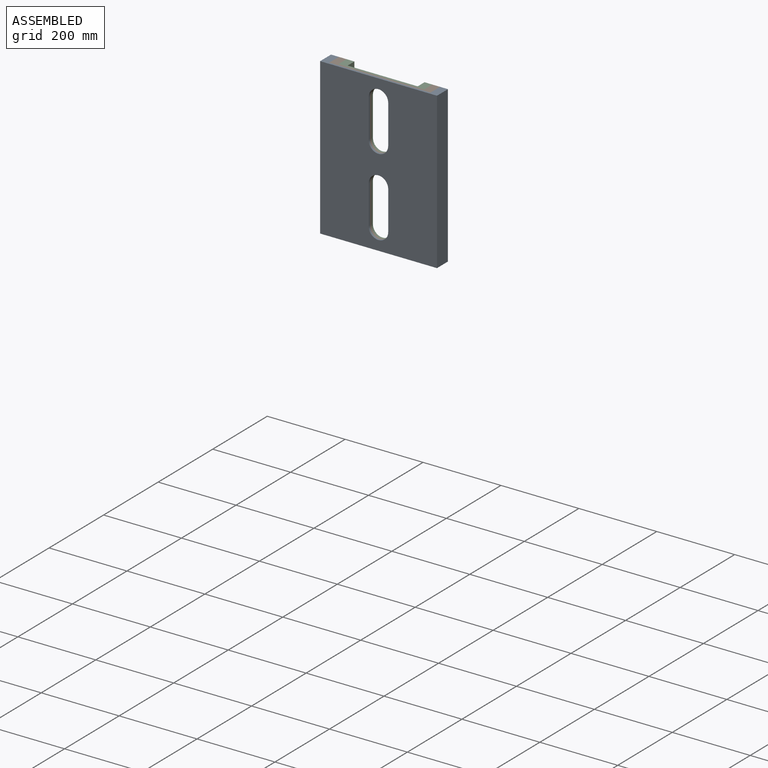
[diagram: assembled view]
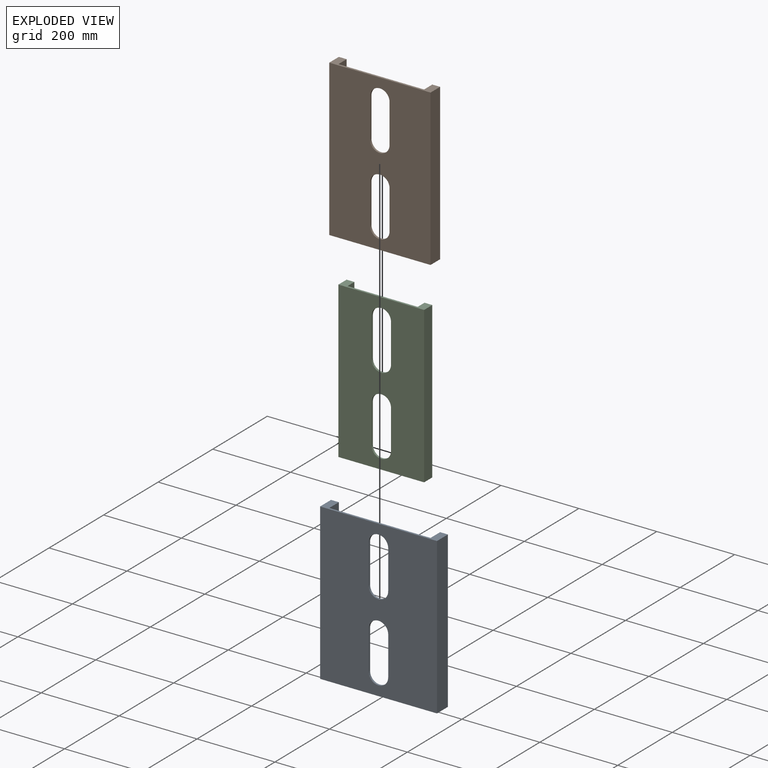
[diagram: exploded view]
GUIDED TOUR — MATED ASSEMBLY (Onshape document 260df022193e4503c66df0c3, AutoMate assembly 260df022193e4503c66df0c3_1e79afa482a3087c5a949fdb_3b2cb31a58f649726c2a078a_default)

This assembly has 3 components, labeled P0..P2 below (a component is one placed occurrence of a part; the same part can appear more than once), held together by 4 mates. A mate is a constraint between two components; its type names the relative motion it leaves free:
  PARALLEL — keeps the two listed directions parallel,
  SLIDER — leaves translation along the listed axis free.
Axis/direction vectors are unit vectors and 'through' points are millimeter coordinates, both in the assembly's world frame.

MATES
  1. PARALLEL "Parallel 1": P2 <-> P1, direction (0.000, 0.000, -1.000) through (0.00, -0.36, 0.00) mm
  2. PARALLEL "Parallel 3": P0 <-> P1, direction (0.000, 0.000, -1.000) through (0.00, -7.84, 0.00) mm
  3. SLIDER "Slider 1": P1 <-> P0, axis (0.000, 0.000, -1.000) through (-130.00, -15.00, 200.00) mm
  4. SLIDER "Slider 2": P2 <-> P1, axis (0.000, 0.000, -1.000) through (110.00, -10.00, 200.00) mm

ASSEMBLY ORDER
  1. P1 — the base component [order verified]
  2. P2 [order verified]
  3. P0 [order verified]
Order-tag legend:
  [order verified] — this step's position reverses a verified removal order: the component was checked to insert without passing through the ones already placed.

Of the 3 components, 3 carry the full construction recipe — the FeatureScript program that regenerates the part's solid from scratch; the rest are supplied as boundary geometry only.
Each toured component is shown spotlighted twice — in the assembled view, then in the exploded view, where a leader line traces a displaced component back to its assembled socket (saturated green if recipe-attached, orange if geometry-only; every other component desaturated gray) — followed by its recipe or geometry summary and the mates that hold it.
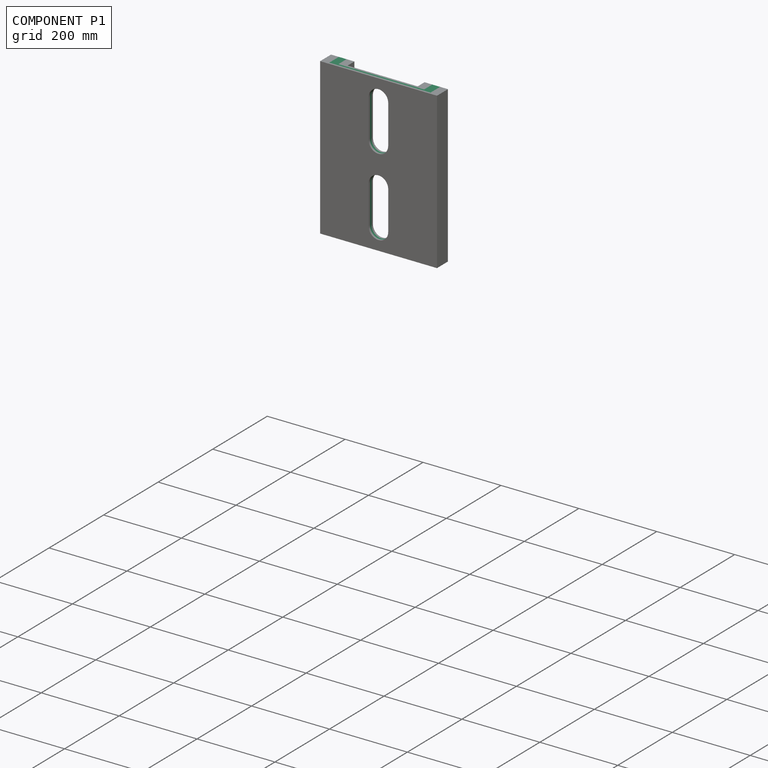
[diagram: component P1 — assembled]
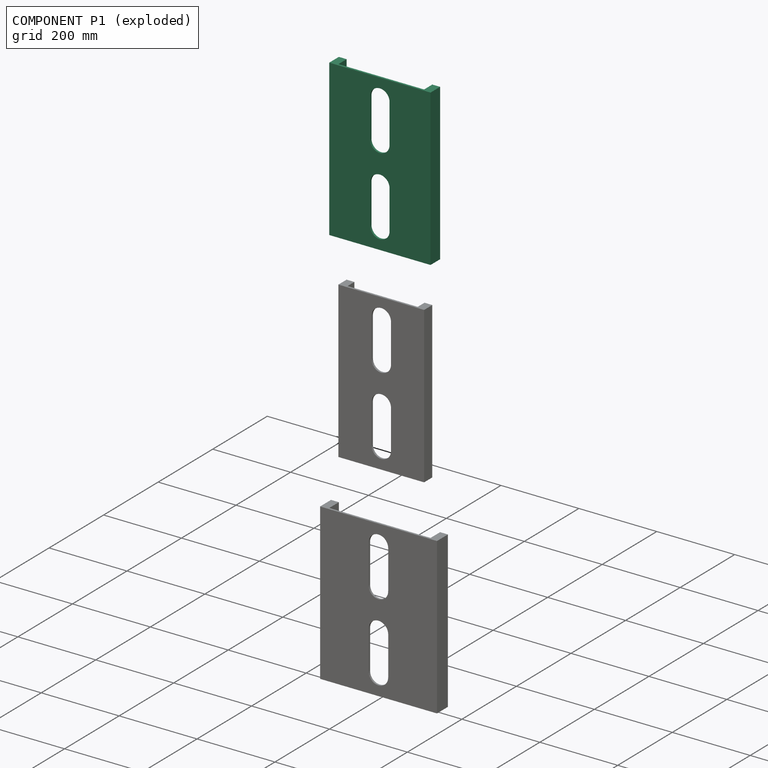
[diagram: component P1 — exploded]
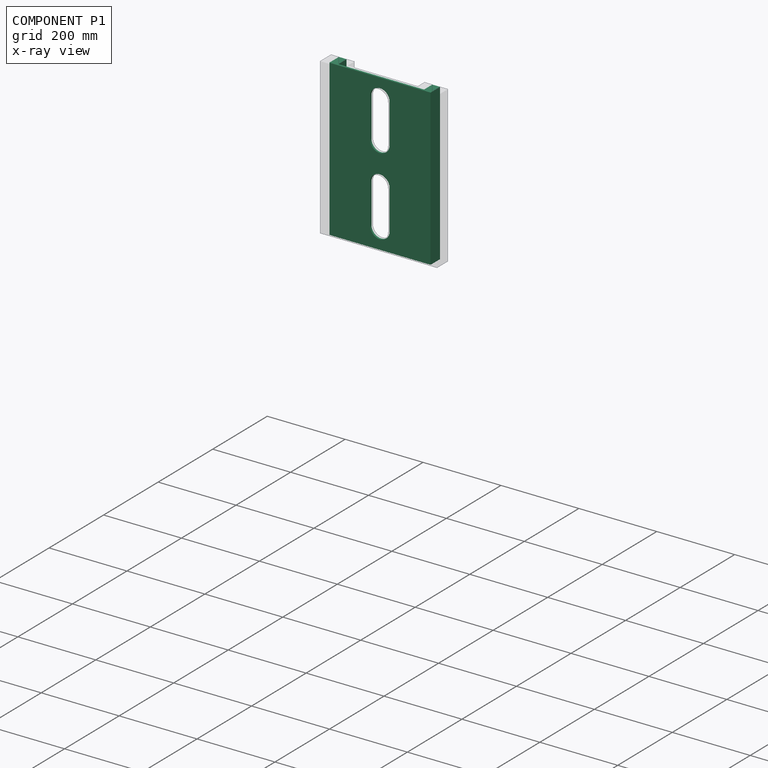
[diagram: component P1 — x-ray view]
COMPONENT P1 — recipe-attached (CADFS 00913795, mesh-verified: the recipe's output STEP matches this component's geometry to below the mesh-comparison resolution (tessellation chordal tolerance ~0.718 mm)).
Held by: PARALLEL mate "Parallel 1" to P2; PARALLEL mate "Parallel 3" to P0; SLIDER mate "Slider 1" to P0; SLIDER mate "Slider 2" to P2.
Construction recipe (FeatureScript — the CAD program that rebuilds this solid; sketch coordinates are in the units given by the * unit suffixes, e.g. mm):

FeatureScript 1511;
import(path : "onshape/std/geometry.fs", version : "1511.0");
import(path : "onshape/std/common.fs", version : "1511.0");
const mm = millimeter;
const VERTEX = EntityType.VERTEX;
const EDGE = EntityType.EDGE;
const FACE = EntityType.FACE;
const BODY = EntityType.BODY;
function v(x, y){return vector(x, y);}
function OD(order){return orderDisambiguation(order);}
function OSD(set){return originalSetDisambiguation(set);}
function TD(topology){return topologyDisambiguation(topology);}
function TDD(query){return trueDependencyDisambiguation(query);}
function sQuery(a, b, c) {return sketchEntityQuery(a, b, c);}

annotation { "Feature Type Name" : "Feature", "Feature Type Description" : "" }
export const myFeature = defineFeature(function(context is Context, id is Id, definition is map)
    precondition{}
    {
        {
            var Q0;
            Q0=qCreatedBy(makeId("Top.planeOp"),FACE);
            var sketch = newSketch(context, id + "F0", { "sketchPlane" : qUnion([Q0])});
            skLineSegment(sketch, "E0.bottom", {"start": v(-130, -17.5) * mm, "end": v(130, -17.5) * mm});
            skLineSegment(sketch, "E0.top", {"start": v(-130, 17.5) * mm, "end": v(-110, 17.5) * mm});
            skLineSegment(sketch, "E0.left", {"start": v(-130, -17.5) * mm, "end": v(-130, 17.5) * mm});
            skLineSegment(sketch, "E0.right", {"start": v(130, -17.5) * mm, "end": v(130, 17.5) * mm});
            skPoint(sketch, "E0.middle", {"position": v(0, 0) * mm});
            skLineSegment(sketch, "E1.top", {"start": v(-110, -12.5) * mm, "end": v(110, -12.5) * mm});
            skLineSegment(sketch, "E1.left", {"start": v(-110, 17.5) * mm, "end": v(-110, -12.5) * mm});
            skLineSegment(sketch, "E1.right", {"start": v(110, 17.5) * mm, "end": v(110, -12.5) * mm});
            skLineSegment(sketch, "E2.trimOffspring", {"start": v(110, 17.5) * mm, "end": v(130, 17.5) * mm});
            skSolve(sketch);
        }
        {
            var Q0;
            Q0=makeQuery(id+"F0.imprint","IMPRINT",FACE,{"disambiguationData":[TD([[makeQuery(id+"F0.imprint","IMPRINT",EDGE,{"derivedFrom":sQuery(id+"F0.wireOp",EDGE,"E0.bottom")}),1.0]])]});
            extrude(context, id + "F1", {"entities" : qUnion([Q0]), "depth" : 400 * mm, "offsetDistance" : 25 * mm});
        }
        {
            var Q0;
            Q0=makeQuery(id+"F1.opExtrude","SWEPT_FACE",FACE,{"disambiguationData":[OSD([sQuery(id+"F0.wireOp",EDGE,"E0.bottom")])]});
            var sketch = newSketch(context, id + "F2", { "sketchPlane" : qUnion([Q0])});
            skLineSegment(sketch, "E3.left", {"start": v(-25.22, 250) * mm, "end": v(-25.22, 350) * mm});
            skLineSegment(sketch, "E3.right", {"start": v(24.78, 250) * mm, "end": v(24.78, 350) * mm});
            skPoint(sketch, "E3.middle", {"position": v(-0.22, 300) * mm});
            skArc(sketch, "E4", {"start": v(-25.22, 350) * mm, "mid": v(-0.22, 375) * mm, "end": v(24.78, 350) * mm});
            skArc(sketch, "E5", {"start": v(24.78, 250) * mm, "mid": v(-0.22, 225) * mm, "end": v(-25.22, 250) * mm});
            skLineSegment(sketch, "E6", {"start": v(-151.6, 200) * mm, "end": v(155.6, 200) * mm, "construction": true});
            skLineSegment(sketch, "E7.MirrorCS", {"start": v(24.78, 150) * mm, "end": v(24.78, 50) * mm});
            skLineSegment(sketch, "E8.MirrorCS", {"start": v(-25.22, 150) * mm, "end": v(-25.22, 50) * mm});
            skArc(sketch, "E9.MirrorCS", {"start": v(-25.22, 50) * mm, "mid": v(-0.22, 25) * mm, "end": v(24.78, 50) * mm});
            skArc(sketch, "E10.MirrorCS", {"start": v(24.78, 150) * mm, "mid": v(-0.22, 175) * mm, "end": v(-25.22, 150) * mm});
            skSolve(sketch);
        }
        {
            var Q0;
            Q0 = qSketchRegion(id + "F2", true);
            extrude(context, id + "F3", {"entities" : qUnion([Q0]), "operationType" : NewBodyOperationType.REMOVE, "oppositeDirection" : true, "depth" : 25 * mm, "offsetDistance" : 25 * mm});
        }
    });
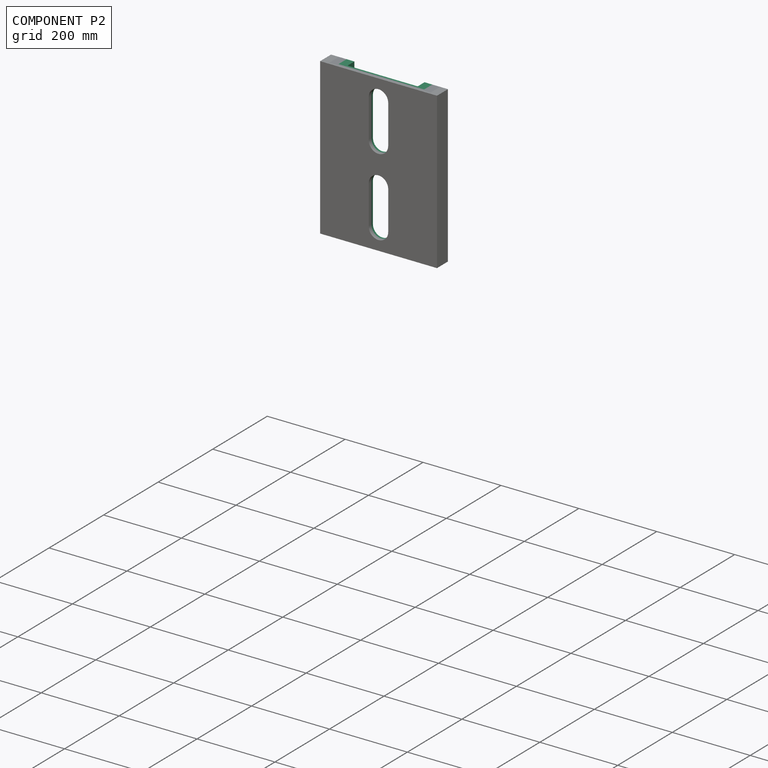
[diagram: component P2 — assembled]
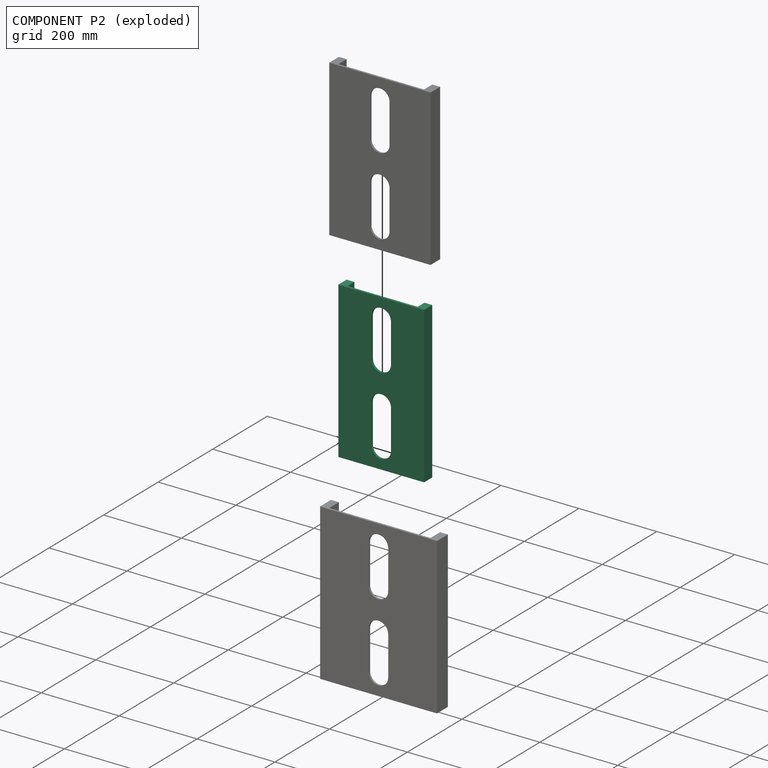
[diagram: component P2 — exploded]
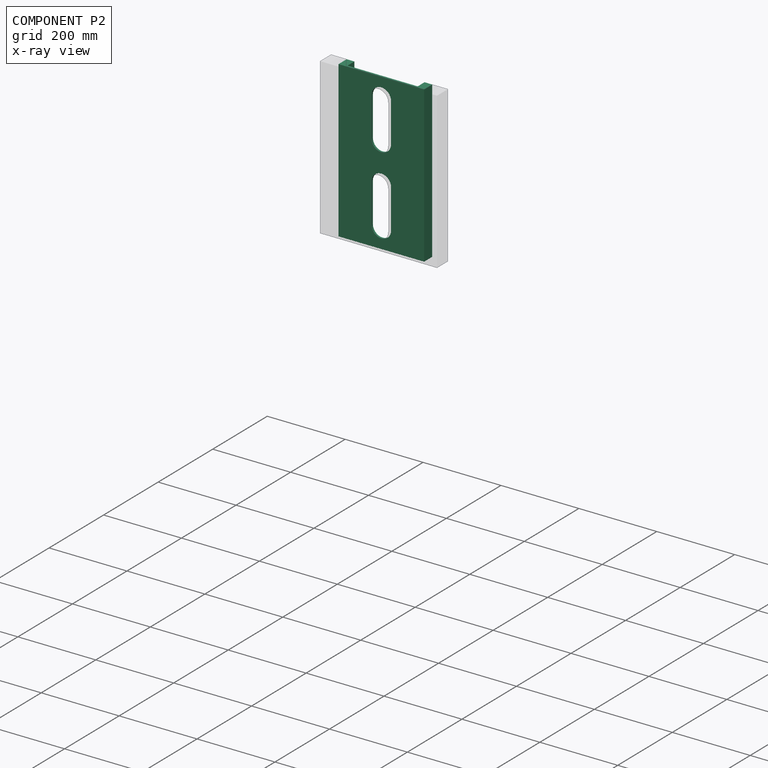
[diagram: component P2 — x-ray view]
COMPONENT P2 — recipe-attached (CADFS 00913806, mesh-verified: the recipe's output STEP matches this component's geometry to below the mesh-comparison resolution (tessellation chordal tolerance ~0.686 mm)).
Held by: PARALLEL mate "Parallel 1" to P1; SLIDER mate "Slider 2" to P1.
Construction recipe (FeatureScript — the CAD program that rebuilds this solid; sketch coordinates are in the units given by the * unit suffixes, e.g. mm):

FeatureScript 1511;
import(path : "onshape/std/geometry.fs", version : "1511.0");
import(path : "onshape/std/common.fs", version : "1511.0");
const mm = millimeter;
const VERTEX = EntityType.VERTEX;
const EDGE = EntityType.EDGE;
const FACE = EntityType.FACE;
const BODY = EntityType.BODY;
function v(x, y){return vector(x, y);}
function OD(order){return orderDisambiguation(order);}
function OSD(set){return originalSetDisambiguation(set);}
function TD(topology){return topologyDisambiguation(topology);}
function TDD(query){return trueDependencyDisambiguation(query);}
function sQuery(a, b, c) {return sketchEntityQuery(a, b, c);}

annotation { "Feature Type Name" : "Feature", "Feature Type Description" : "" }
export const myFeature = defineFeature(function(context is Context, id is Id, definition is map)
    precondition{}
    {
        {
            var Q0;
            Q0=qCreatedBy(makeId("Top.planeOp"),FACE);
            var sketch = newSketch(context, id + "F0", { "sketchPlane" : qUnion([Q0])});
            skLineSegment(sketch, "E0.bottom", {"start": v(-110, -15) * mm, "end": v(110, -15) * mm});
            skLineSegment(sketch, "E0.top", {"start": v(-110, 15) * mm, "end": v(-90, 15) * mm});
            skLineSegment(sketch, "E0.left", {"start": v(-110, -15) * mm, "end": v(-110, 15) * mm});
            skLineSegment(sketch, "E0.right", {"start": v(110, -15) * mm, "end": v(110, 15) * mm});
            skPoint(sketch, "E0.middle", {"position": v(0, 0) * mm});
            skLineSegment(sketch, "E1.top", {"start": v(-90, -10) * mm, "end": v(90, -10) * mm});
            skLineSegment(sketch, "E1.left", {"start": v(-90, 15) * mm, "end": v(-90, -10) * mm});
            skLineSegment(sketch, "E1.right", {"start": v(90, 15) * mm, "end": v(90, -10) * mm});
            skLineSegment(sketch, "E2.trimOffspring", {"start": v(90, 15) * mm, "end": v(110, 15) * mm});
            skSolve(sketch);
        }
        {
            var Q0;
            Q0=makeQuery(id+"F0.imprint","IMPRINT",FACE,{"disambiguationData":[TD([[makeQuery(id+"F0.imprint","IMPRINT",EDGE,{"derivedFrom":sQuery(id+"F0.wireOp",EDGE,"E0.bottom")}),1.0]])]});
            extrude(context, id + "F1", {"entities" : qUnion([Q0]), "depth" : 400 * mm, "offsetDistance" : 25 * mm});
        }
        {
            var Q0;
            Q0=qCreatedBy(makeId("Front.planeOp"),FACE);
            var sketch = newSketch(context, id + "F2", { "sketchPlane" : qUnion([Q0])});
            skLineSegment(sketch, "E3.left", {"start": v(-25, 250) * mm, "end": v(-25, 350) * mm});
            skLineSegment(sketch, "E3.right", {"start": v(25, 250) * mm, "end": v(25, 350) * mm});
            skPoint(sketch, "E3.middle", {"position": v(0, 300) * mm});
            skArc(sketch, "E4", {"start": v(-25, 350) * mm, "mid": v(0, 375) * mm, "end": v(25, 350) * mm});
            skArc(sketch, "E5", {"start": v(25, 250) * mm, "mid": v(0, 225) * mm, "end": v(-25, 250) * mm});
            skLineSegment(sketch, "E6", {"start": v(-151.38, 200) * mm, "end": v(155.82, 200) * mm, "construction": true});
            skLineSegment(sketch, "E7.MirrorCS", {"start": v(25, 150) * mm, "end": v(25, 50) * mm});
            skLineSegment(sketch, "E8.MirrorCS", {"start": v(-25, 150) * mm, "end": v(-25, 50) * mm});
            skArc(sketch, "E9.MirrorCS", {"start": v(-25, 50) * mm, "mid": v(0, 25) * mm, "end": v(25, 50) * mm});
            skArc(sketch, "E10.MirrorCS", {"start": v(25, 150) * mm, "mid": v(0, 175) * mm, "end": v(-25, 150) * mm});
            skSolve(sketch);
        }
        {
            var Q0;
            Q0 = qSketchRegion(id + "F2", true);
            extrude(context, id + "F3", {"entities" : qUnion([Q0]), "operationType" : NewBodyOperationType.REMOVE, "depth" : 25 * mm, "offsetDistance" : 25 * mm});
        }
    });
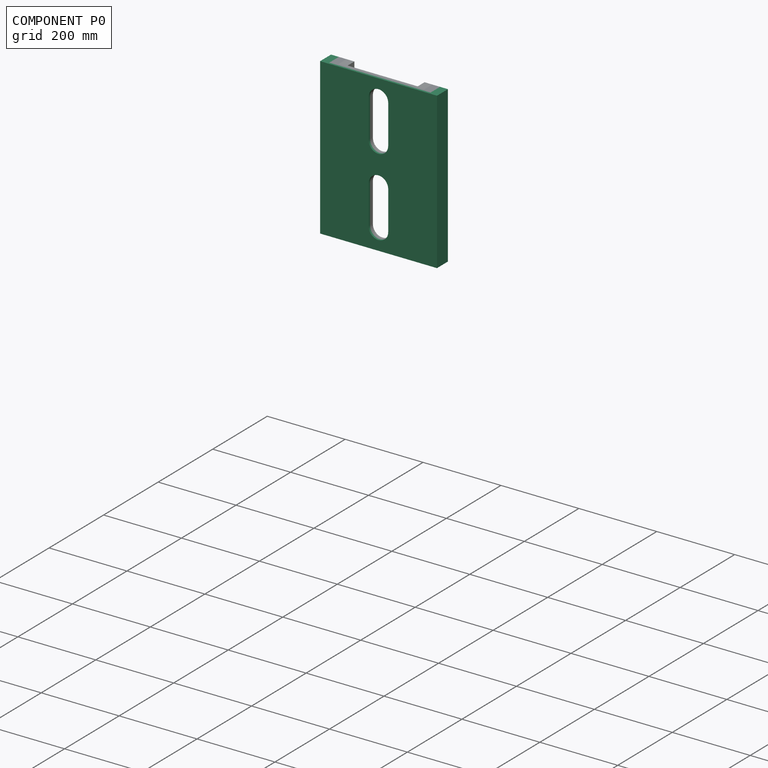
[diagram: component P0 — assembled]
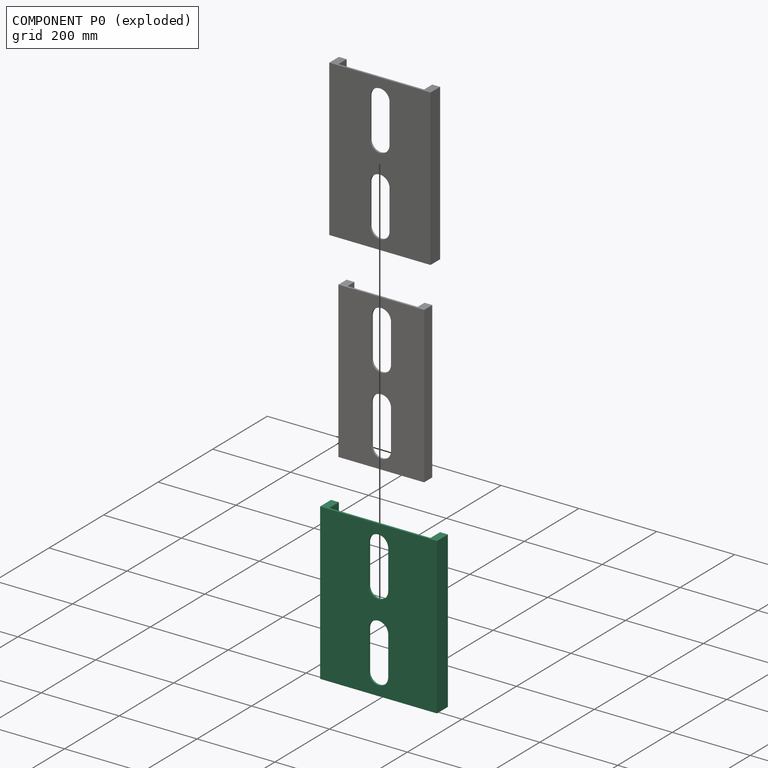
[diagram: component P0 — exploded]
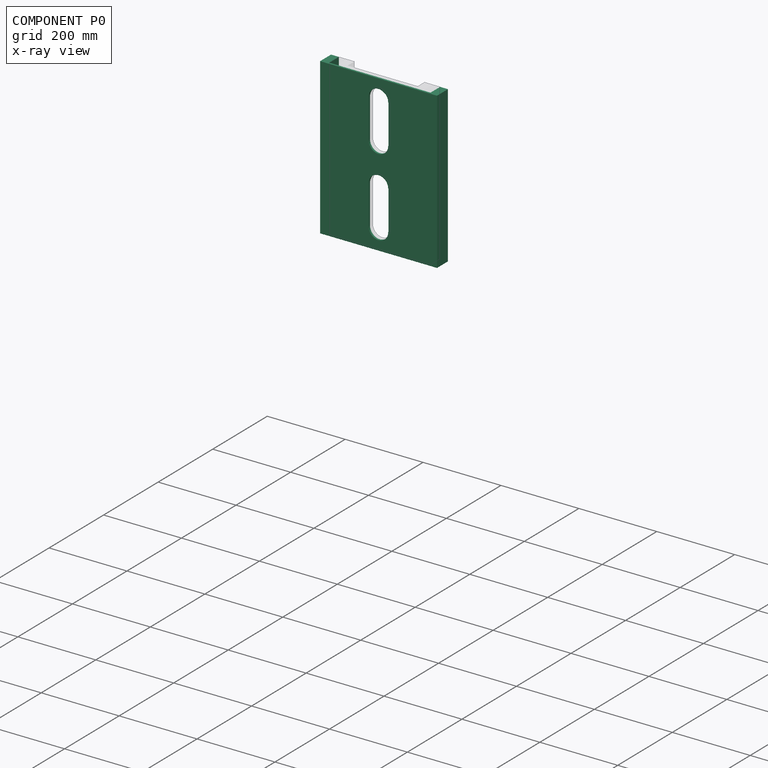
[diagram: component P0 — x-ray view]
COMPONENT P0 — recipe-attached (CADFS 00913785, mesh-verified: the recipe's output STEP matches this component's geometry to below the mesh-comparison resolution (tessellation chordal tolerance ~0.752 mm)).
Held by: PARALLEL mate "Parallel 3" to P1; SLIDER mate "Slider 1" to P1.
Construction recipe (FeatureScript — the CAD program that rebuilds this solid; sketch coordinates are in the units given by the * unit suffixes, e.g. mm):

FeatureScript 1511;
import(path : "onshape/std/geometry.fs", version : "1511.0");
import(path : "onshape/std/common.fs", version : "1511.0");
const mm = millimeter;
const VERTEX = EntityType.VERTEX;
const EDGE = EntityType.EDGE;
const FACE = EntityType.FACE;
const BODY = EntityType.BODY;
function v(x, y){return vector(x, y);}
function OD(order){return orderDisambiguation(order);}
function OSD(set){return originalSetDisambiguation(set);}
function TD(topology){return topologyDisambiguation(topology);}
function TDD(query){return trueDependencyDisambiguation(query);}
function sQuery(a, b, c) {return sketchEntityQuery(a, b, c);}

annotation { "Feature Type Name" : "Feature", "Feature Type Description" : "" }
export const myFeature = defineFeature(function(context is Context, id is Id, definition is map)
    precondition{}
    {
        {
            var Q0;
            Q0=qCreatedBy(makeId("Top.planeOp"),FACE);
            var sketch = newSketch(context, id + "F0", { "sketchPlane" : qUnion([Q0])});
            skLineSegment(sketch, "E0.bottom", {"start": v(-150, -20) * mm, "end": v(150, -20) * mm});
            skLineSegment(sketch, "E0.top", {"start": v(-150, 20) * mm, "end": v(-130, 20) * mm});
            skLineSegment(sketch, "E0.left", {"start": v(-150, -20) * mm, "end": v(-150, 20) * mm});
            skLineSegment(sketch, "E0.right", {"start": v(150, -20) * mm, "end": v(150, 20) * mm});
            skPoint(sketch, "E0.middle", {"position": v(0, 0) * mm});
            skLineSegment(sketch, "E1.bottom", {"start": v(-130, -15) * mm, "end": v(130, -15) * mm});
            skLineSegment(sketch, "E1.left", {"start": v(-130, -15) * mm, "end": v(-130, 20) * mm});
            skLineSegment(sketch, "E1.right", {"start": v(130, -15) * mm, "end": v(130, 20) * mm});
            skPoint(sketch, "E1.middle", {"position": v(0, 2.5) * mm});
            skLineSegment(sketch, "E2.trimOffspring", {"start": v(130, 20) * mm, "end": v(150, 20) * mm});
            skSolve(sketch);
        }
        {
            var Q0;
            Q0=makeQuery(id+"F0.imprint","IMPRINT",FACE,{"disambiguationData":[TD([[makeQuery(id+"F0.imprint","IMPRINT",EDGE,{"derivedFrom":sQuery(id+"F0.wireOp",EDGE,"E0.bottom")}),1.0]])]});
            extrude(context, id + "F1", {"entities" : qUnion([Q0]), "depth" : 400 * mm, "offsetDistance" : 25 * mm});
        }
        {
            var Q0;
            Q0=makeQuery(id+"F1.opExtrude","SWEPT_FACE",FACE,{"disambiguationData":[OSD([sQuery(id+"F0.wireOp",EDGE,"E0.bottom")])]});
            var sketch = newSketch(context, id + "F2", { "sketchPlane" : qUnion([Q0])});
            skLineSegment(sketch, "E3.left", {"start": v(-25.22, 250) * mm, "end": v(-25.22, 350) * mm});
            skLineSegment(sketch, "E3.right", {"start": v(24.78, 250) * mm, "end": v(24.78, 350) * mm});
            skPoint(sketch, "E3.middle", {"position": v(-0.22, 300) * mm});
            skArc(sketch, "E4", {"start": v(-25.22, 350) * mm, "mid": v(-0.22, 375) * mm, "end": v(24.78, 350) * mm});
            skArc(sketch, "E5", {"start": v(24.78, 250) * mm, "mid": v(-0.22, 225) * mm, "end": v(-25.22, 250) * mm});
            skLineSegment(sketch, "E6", {"start": v(-151.6, 200) * mm, "end": v(155.6, 200) * mm, "construction": true});
            skLineSegment(sketch, "E7.MirrorCS", {"start": v(24.78, 150) * mm, "end": v(24.78, 50) * mm});
            skLineSegment(sketch, "E8.MirrorCS", {"start": v(-25.22, 150) * mm, "end": v(-25.22, 50) * mm});
            skArc(sketch, "E9.MirrorCS", {"start": v(-25.22, 50) * mm, "mid": v(-0.22, 25) * mm, "end": v(24.78, 50) * mm});
            skArc(sketch, "E10.MirrorCS", {"start": v(24.78, 150) * mm, "mid": v(-0.22, 175) * mm, "end": v(-25.22, 150) * mm});
            skSolve(sketch);
        }
        {
            var Q0;
            Q0 = qSketchRegion(id + "F2", true);
            extrude(context, id + "F3", {"entities" : qUnion([Q0]), "operationType" : NewBodyOperationType.REMOVE, "oppositeDirection" : true, "depth" : 25 * mm, "offsetDistance" : 25 * mm});
        }
    });
PROVENANCE & LICENSES
Assembly (occurrences, transforms, mates, per-part STEP geometry): AutoMate dataset, Zenodo record 7776208, CC0.
Construction recipes: CADFS (HuggingFace VladPyatov/CADFS, CC-BY-4.0, layered over the ABC dataset), FeatureScript reconstruction programs keyed by ABC model id.
Join: ABC meta listings map ABC model id -> Onshape documentId; within a shared document, parts are matched by geometric signature (bounding-box dims + volume at 0.1% relative tolerance, exact B-rep face/solid counts).
Verification: 3 of this assembly's 3 components carry a recipe attachment, and every attachment is mesh-verified: the CADFS STEP and the AutoMate member STEP were compared as meshes in their shared local frame (symmetric sampled-point-to-mesh distance); worst across the 3 attachments: below the mesh-comparison resolution (tessellation chordal tolerance ~0.752 mm) on a 502 mm part.
Renders: orthographic iso camera (az 35 / el 25); the floor grid conveys scale (grid pitch printed in each image; no ruler). In the exploded view each component is displaced by its stored offset vector: the offsets alone carry the explosion direction (mate normal/axis signs are not orientation cues and do not encode it), and separation distances are assigned per mate-chain, not proportionally to assembly-order depth.
